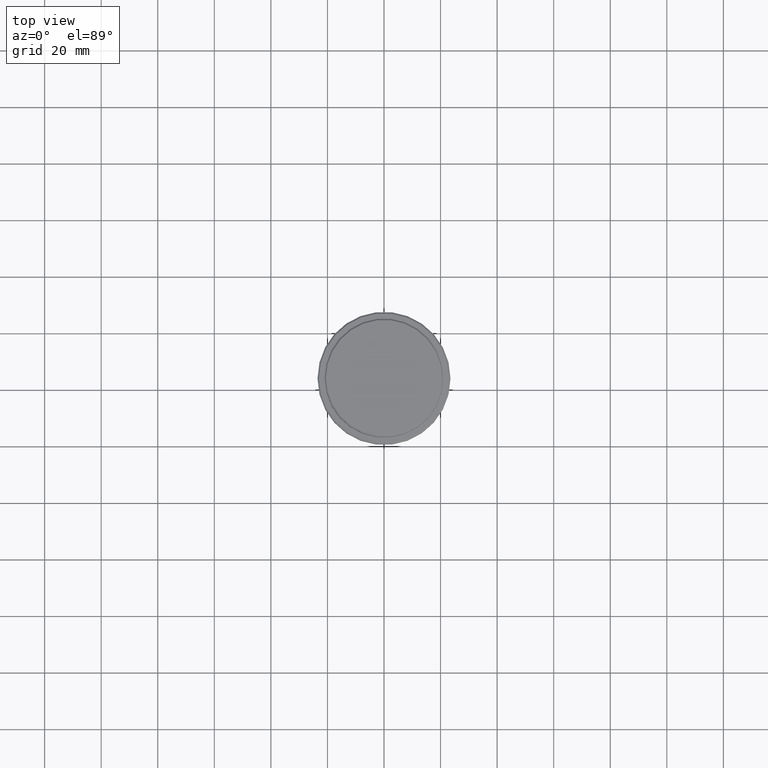
[diagram: clean part render]
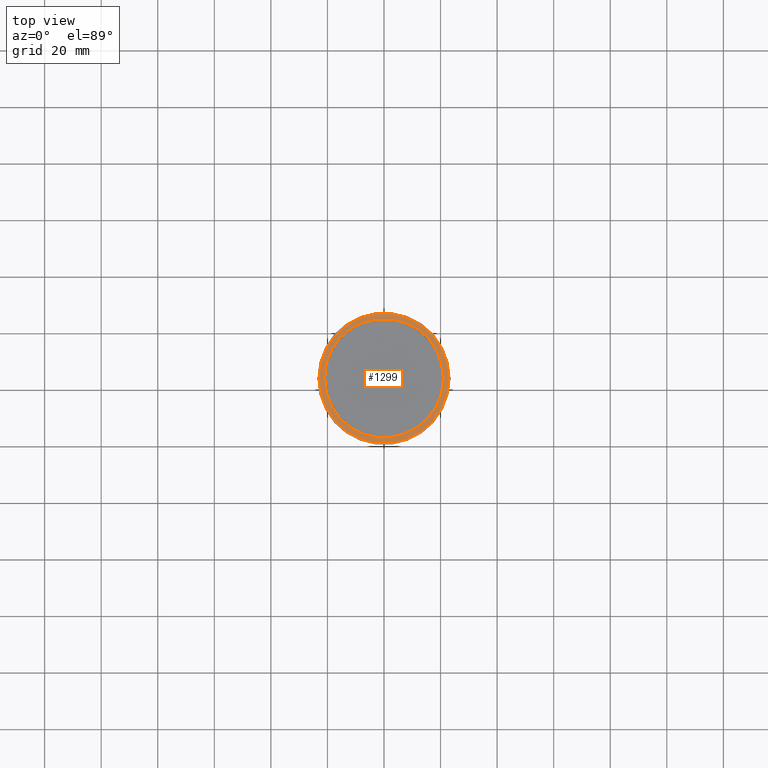
[diagram: same view with one face highlighted and labeled with its STEP entity id]
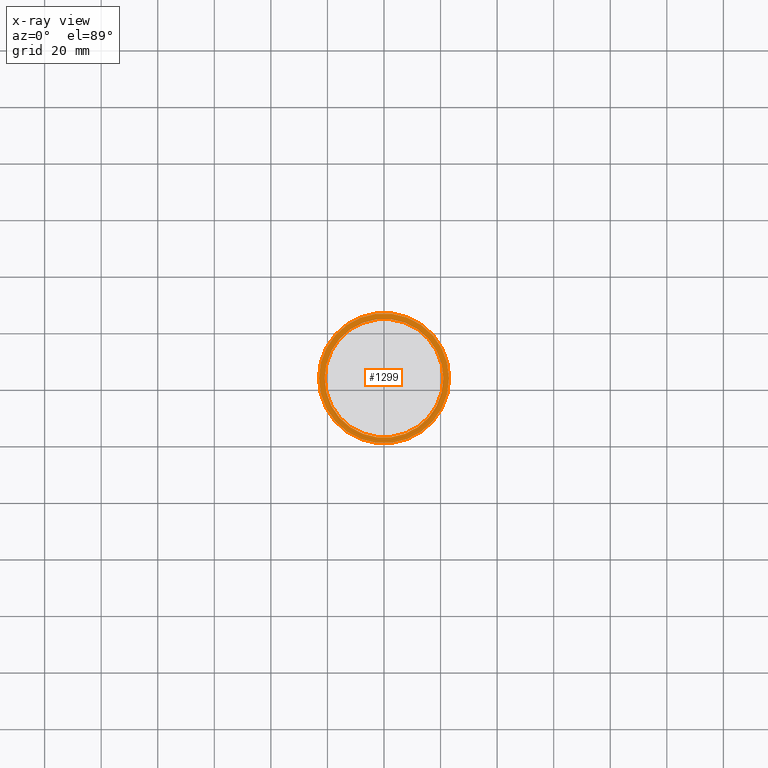
[diagram: x-ray of the same camera — body ghosted, the highlighted face saturated]
A machine part, top view. The second image highlights one B-rep face of the part: STEP entity #1299.
The next image is the same camera in x-ray: the body ghosted, the highlighted face saturated — about 0% of this face is hidden behind the body in this view.
In plain terms, the highlighted planar face has unit normal (0, -0, 1).
Its self-contained STEP definition (entity closure, byte-faithful):
#79 = DIRECTION ( 'NONE',  ( 0.000000000000000000, -0.000000000000000000, 1.000000000000000000 ) ) ;
#89 = CIRCLE ( 'NONE', #815, 20.99999999999999289 ) ;
#124 = DIRECTION ( 'NONE',  ( -0.000000000000000000, -0.000000000000000000, 1.000000000000000000 ) ) ;
#126 = AXIS2_PLACEMENT_3D ( 'NONE', #1179, #845, #543 ) ;
#137 = EDGE_LOOP ( 'NONE', ( #1133, #1126 ) ) ;
#186 = FACE_BOUND ( 'NONE', #137, .T. ) ;
#196 = AXIS2_PLACEMENT_3D ( 'NONE', #891, #124, #1244 ) ;
#212 = EDGE_CURVE ( 'NONE', #419, #804, #646, .T. ) ;
#216 = CIRCLE ( 'NONE', #126, 20.99999999999999289 ) ;
#244 = ORIENTED_EDGE ( 'NONE', *, *, #212, .T. ) ;
#246 = VERTEX_POINT ( 'NONE', #489 ) ;
#258 = CARTESIAN_POINT ( 'NONE',  ( -20.99999999999999289, 2.571758278209440872E-15, -9.000000000000000000 ) ) ;
#280 = DIRECTION ( 'NONE',  ( 1.000000000000000000, 0.000000000000000000, 0.000000000000000000 ) ) ;
#301 = DIRECTION ( 'NONE',  ( 1.000000000000000000, 0.000000000000000000, 0.000000000000000000 ) ) ;
#385 = DIRECTION ( 'NONE',  ( -0.000000000000000000, -0.000000000000000000, 1.000000000000000000 ) ) ;
#419 = VERTEX_POINT ( 'NONE', #1384 ) ;
#489 = CARTESIAN_POINT ( 'NONE',  ( 20.99999999999999289, 0.000000000000000000, -9.000000000000000000 ) ) ;
#501 = DIRECTION ( 'NONE',  ( 0.000000000000000000, 0.000000000000000000, -1.000000000000000000 ) ) ;
#543 = DIRECTION ( 'NONE',  ( 1.000000000000000000, 0.000000000000000000, 0.000000000000000000 ) ) ;
#646 = CIRCLE ( 'NONE', #856, 23.00000000000002487 ) ;
#794 = DIRECTION ( 'NONE',  ( 1.000000000000000000, 0.000000000000000000, 0.000000000000000000 ) ) ;
#796 = EDGE_CURVE ( 'NONE', #246, #1013, #216, .T. ) ;
#804 = VERTEX_POINT ( 'NONE', #849 ) ;
#815 = AXIS2_PLACEMENT_3D ( 'NONE', #1033, #501, #280 ) ;
#845 = DIRECTION ( 'NONE',  ( 0.000000000000000000, 0.000000000000000000, -1.000000000000000000 ) ) ;
#849 = CARTESIAN_POINT ( 'NONE',  ( -23.00000000000002487, 0.000000000000000000, -9.000000000000000000 ) ) ;
#856 = AXIS2_PLACEMENT_3D ( 'NONE', #1375, #385, #794 ) ;
#885 = EDGE_CURVE ( 'NONE', #804, #419, #1051, .T. ) ;
#891 = CARTESIAN_POINT ( 'NONE',  ( 0.000000000000000000, 0.000000000000000000, -9.000000000000000000 ) ) ;
#986 = ORIENTED_EDGE ( 'NONE', *, *, #885, .T. ) ;
#1013 = VERTEX_POINT ( 'NONE', #258 ) ;
#1026 = AXIS2_PLACEMENT_3D ( 'NONE', #1295, #79, #301 ) ;
#1033 = CARTESIAN_POINT ( 'NONE',  ( 0.000000000000000000, 0.000000000000000000, -9.000000000000000000 ) ) ;
#1051 = CIRCLE ( 'NONE', #196, 23.00000000000002487 ) ;
#1062 = PLANE ( 'NONE',  #1026 ) ;
#1065 = EDGE_LOOP ( 'NONE', ( #986, #244 ) ) ;
#1072 = EDGE_CURVE ( 'NONE', #1013, #246, #89, .T. ) ;
#1126 = ORIENTED_EDGE ( 'NONE', *, *, #1072, .T. ) ;
#1133 = ORIENTED_EDGE ( 'NONE', *, *, #796, .T. ) ;
#1179 = CARTESIAN_POINT ( 'NONE',  ( 0.000000000000000000, 0.000000000000000000, -9.000000000000000000 ) ) ;
#1244 = DIRECTION ( 'NONE',  ( 1.000000000000000000, 0.000000000000000000, 0.000000000000000000 ) ) ;
#1295 = CARTESIAN_POINT ( 'NONE',  ( 0.000000000000000000, 20.49999999999999645, -9.000000000000000000 ) ) ;
#1299 = ADVANCED_FACE ( 'NONE', ( #1314, #186 ), #1062, .T. ) ;
#1314 = FACE_OUTER_BOUND ( 'NONE', #1065, .T. ) ;
#1375 = CARTESIAN_POINT ( 'NONE',  ( 0.000000000000000000, 0.000000000000000000, -9.000000000000000000 ) ) ;
#1384 = CARTESIAN_POINT ( 'NONE',  ( 23.00000000000002487, 2.847303808017597717E-15, -9.000000000000000000 ) ) ;